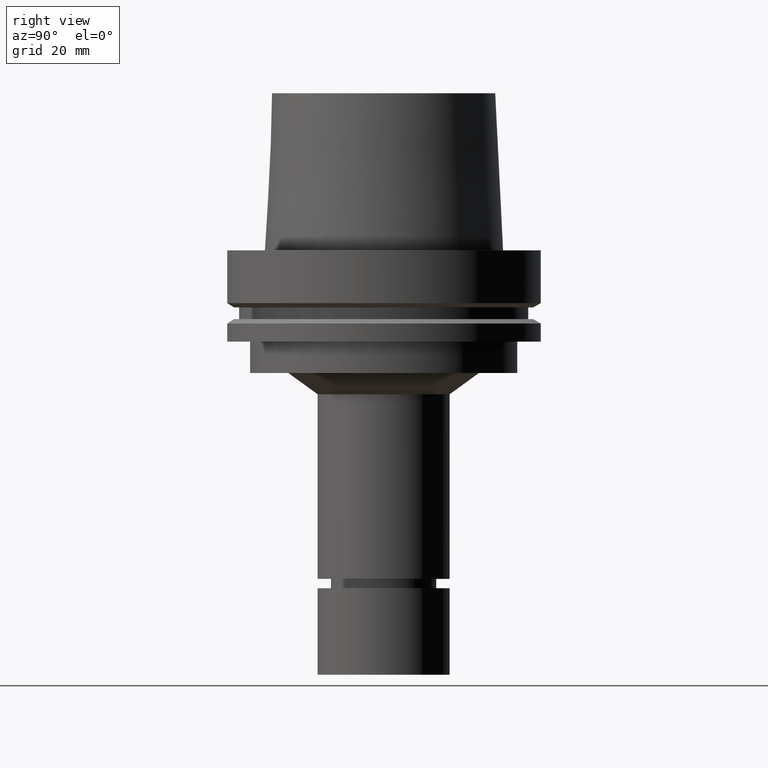
[diagram: clean part render]
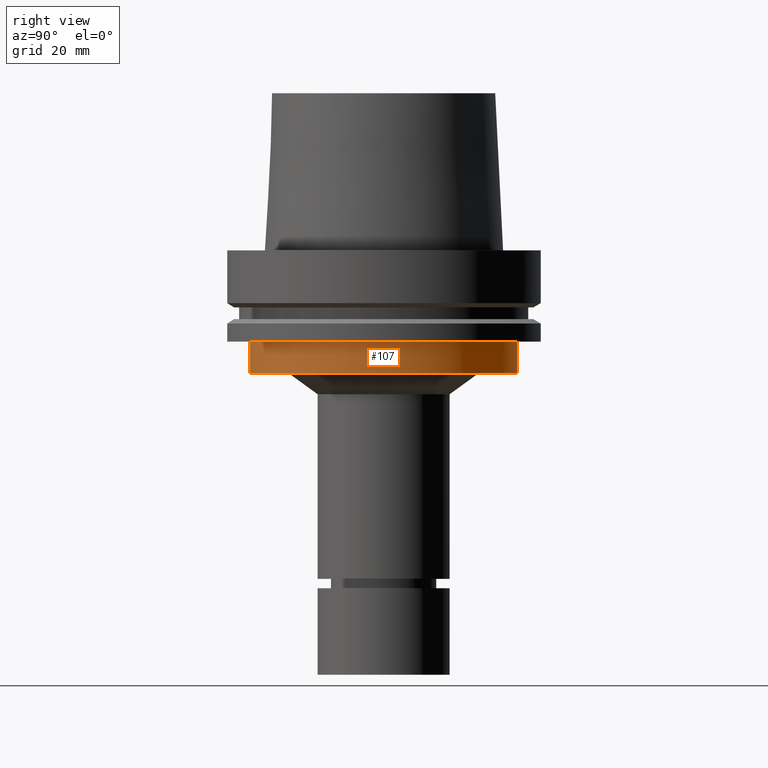
[diagram: same view with one face highlighted and labeled with its STEP entity id]
A machine part, right view. The second image highlights one B-rep face of the part: STEP entity #107.
In plain terms, the highlighted cylindrical surface (bore or boss wall) has radius 42.5 mm, axis along (0, 0, -1).
Its self-contained STEP definition (entity closure, byte-faithful):
#107=ADVANCED_FACE('Unnamed[1]',(#263,#264),#265,.T.);
#171=EDGE_CURVE('Unnamed[1]',#360,#360,#361,.T.);
#201=EDGE_CURVE('Unnamed[1]',#407,#407,#408,.T.);
#263=FACE_BOUND('',#473,.T.);
#264=FACE_BOUND('',#474,.T.);
#265=CYLINDRICAL_SURFACE('',#475,42.5);
#360=VERTEX_POINT('',#593);
#361=CIRCLE('',#594,42.5);
#407=VERTEX_POINT('',#652);
#408=CIRCLE('',#653,42.5);
#473=EDGE_LOOP('',(#701));
#474=EDGE_LOOP('',(#702));
#475=AXIS2_PLACEMENT_3D('',#703,#704,#705);
#593=CARTESIAN_POINT('',(2.38806125833734E-015,42.5,-39.0));
#594=AXIS2_PLACEMENT_3D('',#807,#808,#809);
#652=CARTESIAN_POINT('',(1.77573785876366E-015,42.5,-29.0));
#653=AXIS2_PLACEMENT_3D('',#860,#861,#862);
#701=ORIENTED_EDGE('',*,*,#171,.F.);
#702=ORIENTED_EDGE('',*,*,#201,.T.);
#703=CARTESIAN_POINT('',(2.0818995585505E-015,4.163799117101E-015,-34.0));
#704=DIRECTION('',(6.12323399573677E-017,1.22464679914687E-016,-1.0));
#705=DIRECTION('',(-1.23259516440783E-032,1.0,1.22464679914687E-016));
#807=CARTESIAN_POINT('',(2.38806125833734E-015,4.77612251667468E-015,-39.0));
#808=DIRECTION('',(6.12323399573677E-017,1.22464679914687E-016,-1.0));
#809=DIRECTION('',(-1.23259516440783E-032,1.0,1.22464679914687E-016));
#860=CARTESIAN_POINT('',(1.77573785876366E-015,3.55147571752733E-015,-29.0));
#861=DIRECTION('',(6.12323399573677E-017,1.22464679914687E-016,-1.0));
#862=DIRECTION('',(-1.23259516440783E-032,1.0,1.22464679914687E-016));